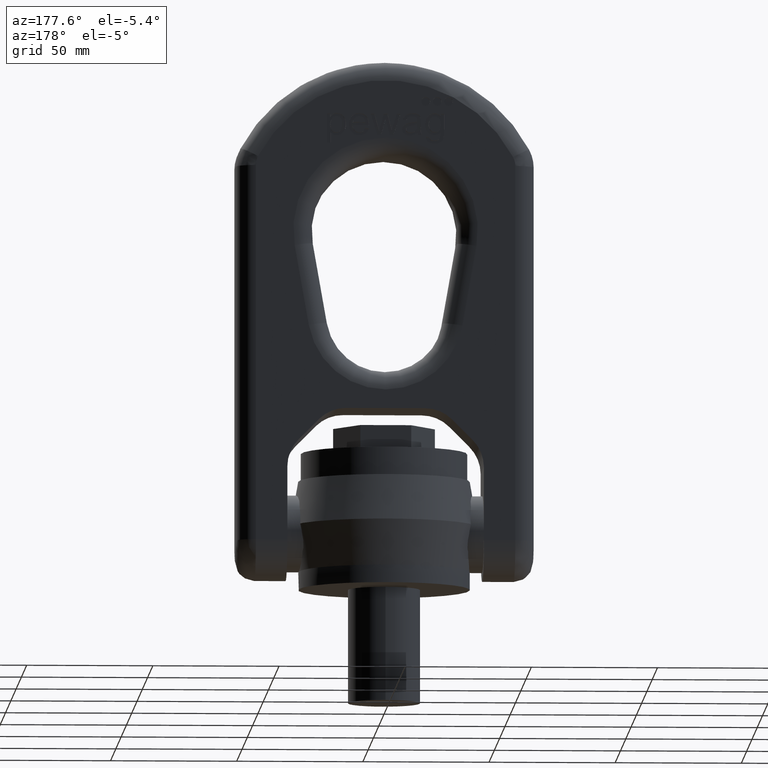
[diagram: clean part render]
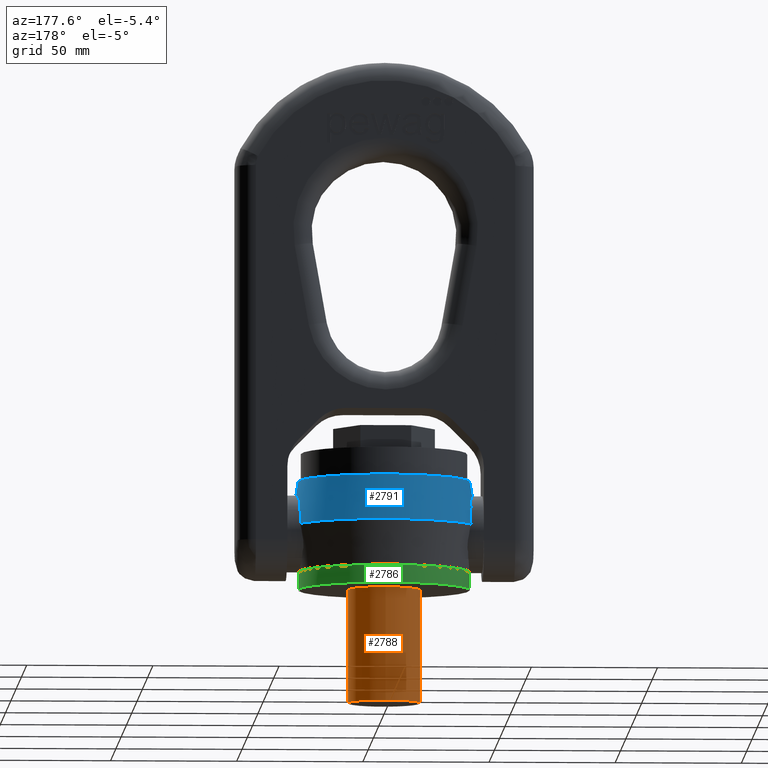
[diagram: same view with three faces highlighted in distinct colors, each labeled with its STEP entity id]
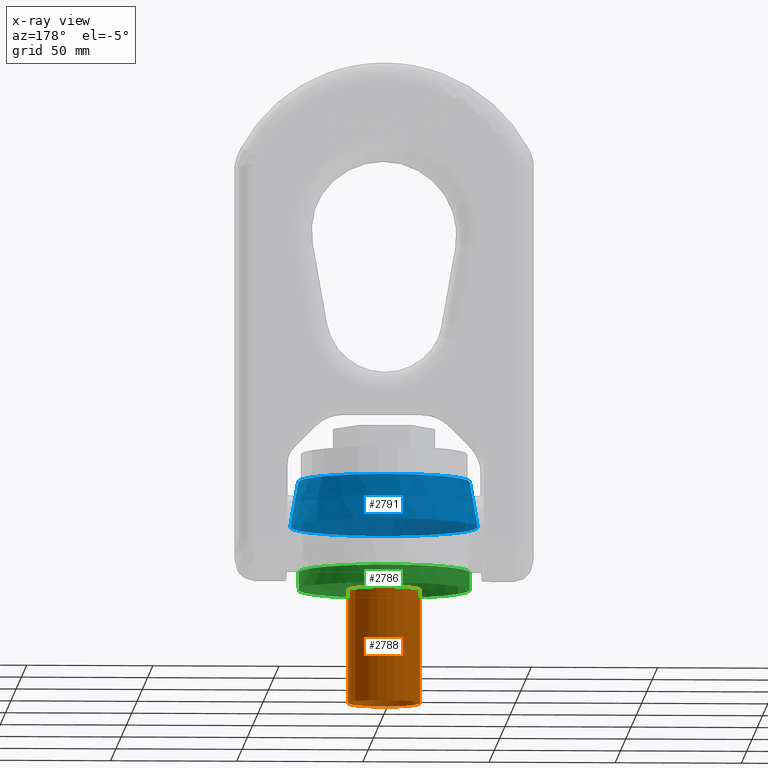
[diagram: x-ray of the same camera — body ghosted, the three highlighted faces saturated]
A machine part, auxiliary view with three faces highlighted in distinct colors.
The next image is the same camera in x-ray (body ghosted, the three faces saturated) — at least one of them is partly hidden behind the body in this view.
Their STEP definitions:

[orange] entity #2788 — the highlighted cylindrical surface (bore or boss wall) has radius 14.29 mm, axis along (0, 0, 1).
#2788=ADVANCED_FACE('',(#3073,#3074),#3041,.T.);
#3041=CYLINDRICAL_SURFACE('',#5834,14.29);
#3073=FACE_BOUND('',#3141,.T.);
#3074=FACE_BOUND('',#3142,.T.);
#3141=EDGE_LOOP('',(#3437));
#3142=EDGE_LOOP('',(#3438));
#3437=ORIENTED_EDGE('',*,*,#5120,.F.);
#3438=ORIENTED_EDGE('',*,*,#5119,.T.);
#4699=VERTEX_POINT('',#6943);
#4700=VERTEX_POINT('',#6946);
#5119=EDGE_CURVE('',#4699,#4699,#5751,.T.);
#5120=EDGE_CURVE('',#4700,#4700,#5752,.T.);
#5751=CIRCLE('',#5831,14.29);
#5752=CIRCLE('',#5833,14.29);
#5831=AXIS2_PLACEMENT_3D('',#6942,#6072,#6073);
#5833=AXIS2_PLACEMENT_3D('',#6945,#6076,#6077);
#5834=AXIS2_PLACEMENT_3D('',#6947,#6078,#6079);
#6072=DIRECTION('',(0.,0.,-1.));
#6073=DIRECTION('',(-6.12323399573677E-17,1.,0.));
#6076=DIRECTION('',(0.,0.,-1.));
#6077=DIRECTION('',(-6.12323399573677E-17,1.,0.));
#6078=DIRECTION('',(0.,0.,1.));
#6079=DIRECTION('',(1.,0.,0.));
#6942=CARTESIAN_POINT('',(0.,0.,0.));
#6943=CARTESIAN_POINT('',(-8.75010137990784E-16,14.29,0.));
#6945=CARTESIAN_POINT('',(0.,0.,-45.));
#6946=CARTESIAN_POINT('',(-8.75010137990784E-16,14.29,-45.));
#6947=CARTESIAN_POINT('',(0.,0.,-45.));

[blue] entity #2791 — the highlighted conical surface has half-angle 10 deg.
#2436=CONICAL_SURFACE('',#5839,37.1738856527524,9.99999999999999);
#2791=ADVANCED_FACE('',(#3077,#3078),#2436,.T.);
#3077=FACE_BOUND('',#3146,.T.);
#3078=FACE_BOUND('',#3147,.T.);
#3146=EDGE_LOOP('',(#3442));
#3147=EDGE_LOOP('',(#3443));
#3442=ORIENTED_EDGE('',*,*,#5122,.T.);
#3443=ORIENTED_EDGE('',*,*,#5121,.F.);
#4701=VERTEX_POINT('',#6950);
#4702=VERTEX_POINT('',#6953);
#5121=EDGE_CURVE('',#4701,#4701,#5753,.T.);
#5122=EDGE_CURVE('',#4702,#4702,#5754,.T.);
#5753=CIRCLE('',#5836,37.1738856527524);
#5754=CIRCLE('',#5838,34.);
#5836=AXIS2_PLACEMENT_3D('',#6949,#6082,#6083);
#5838=AXIS2_PLACEMENT_3D('',#6952,#6086,#6087);
#5839=AXIS2_PLACEMENT_3D('',#6954,#6088,#6089);
#6082=DIRECTION('',(0.,0.,-1.));
#6083=DIRECTION('',(-1.,0.,0.));
#6086=DIRECTION('',(0.,0.,-1.));
#6087=DIRECTION('',(-1.,0.,0.));
#6088=DIRECTION('',(0.,0.,-1.));
#6089=DIRECTION('',(-1.,0.,8.12513553477516E-17));
#6949=CARTESIAN_POINT('',(0.,0.,25.));
#6950=CARTESIAN_POINT('',(-37.1738856527524,0.,25.));
#6952=CARTESIAN_POINT('',(0.,0.,43.));
#6953=CARTESIAN_POINT('',(-34.,0.,43.));
#6954=CARTESIAN_POINT('',(0.,0.,25.));

[green] entity #2786 — the highlighted cylindrical surface (bore or boss wall) has radius 34 mm, axis along (0, 0, -1).
#2786=ADVANCED_FACE('',(#3069,#3070),#3040,.T.);
#3040=CYLINDRICAL_SURFACE('',#5830,34.);
#3069=FACE_BOUND('',#3137,.T.);
#3070=FACE_BOUND('',#3138,.T.);
#3137=EDGE_LOOP('',(#3433));
#3138=EDGE_LOOP('',(#3434));
#3433=ORIENTED_EDGE('',*,*,#5117,.T.);
#3434=ORIENTED_EDGE('',*,*,#5118,.F.);
#4697=VERTEX_POINT('',#6938);
#4698=VERTEX_POINT('',#6940);
#5117=EDGE_CURVE('',#4697,#4697,#5749,.T.);
#5118=EDGE_CURVE('',#4698,#4698,#5750,.T.);
#5749=CIRCLE('',#5828,34.);
#5750=CIRCLE('',#5829,34.);
#5828=AXIS2_PLACEMENT_3D('',#6937,#6066,#6067);
#5829=AXIS2_PLACEMENT_3D('',#6939,#6068,#6069);
#5830=AXIS2_PLACEMENT_3D('',#6941,#6070,#6071);
#6066=DIRECTION('',(0.,0.,-1.));
#6067=DIRECTION('',(-1.,0.,0.));
#6068=DIRECTION('',(0.,0.,-1.));
#6069=DIRECTION('',(-6.12323399573677E-17,1.,0.));
#6070=DIRECTION('',(0.,0.,-1.));
#6071=DIRECTION('',(-1.,0.,0.));
#6937=CARTESIAN_POINT('',(0.,0.,7.));
#6938=CARTESIAN_POINT('',(-34.,0.,7.));
#6939=CARTESIAN_POINT('',(0.,0.,0.));
#6940=CARTESIAN_POINT('',(-2.0818995585505E-15,34.,0.));
#6941=CARTESIAN_POINT('',(0.,0.,7.));